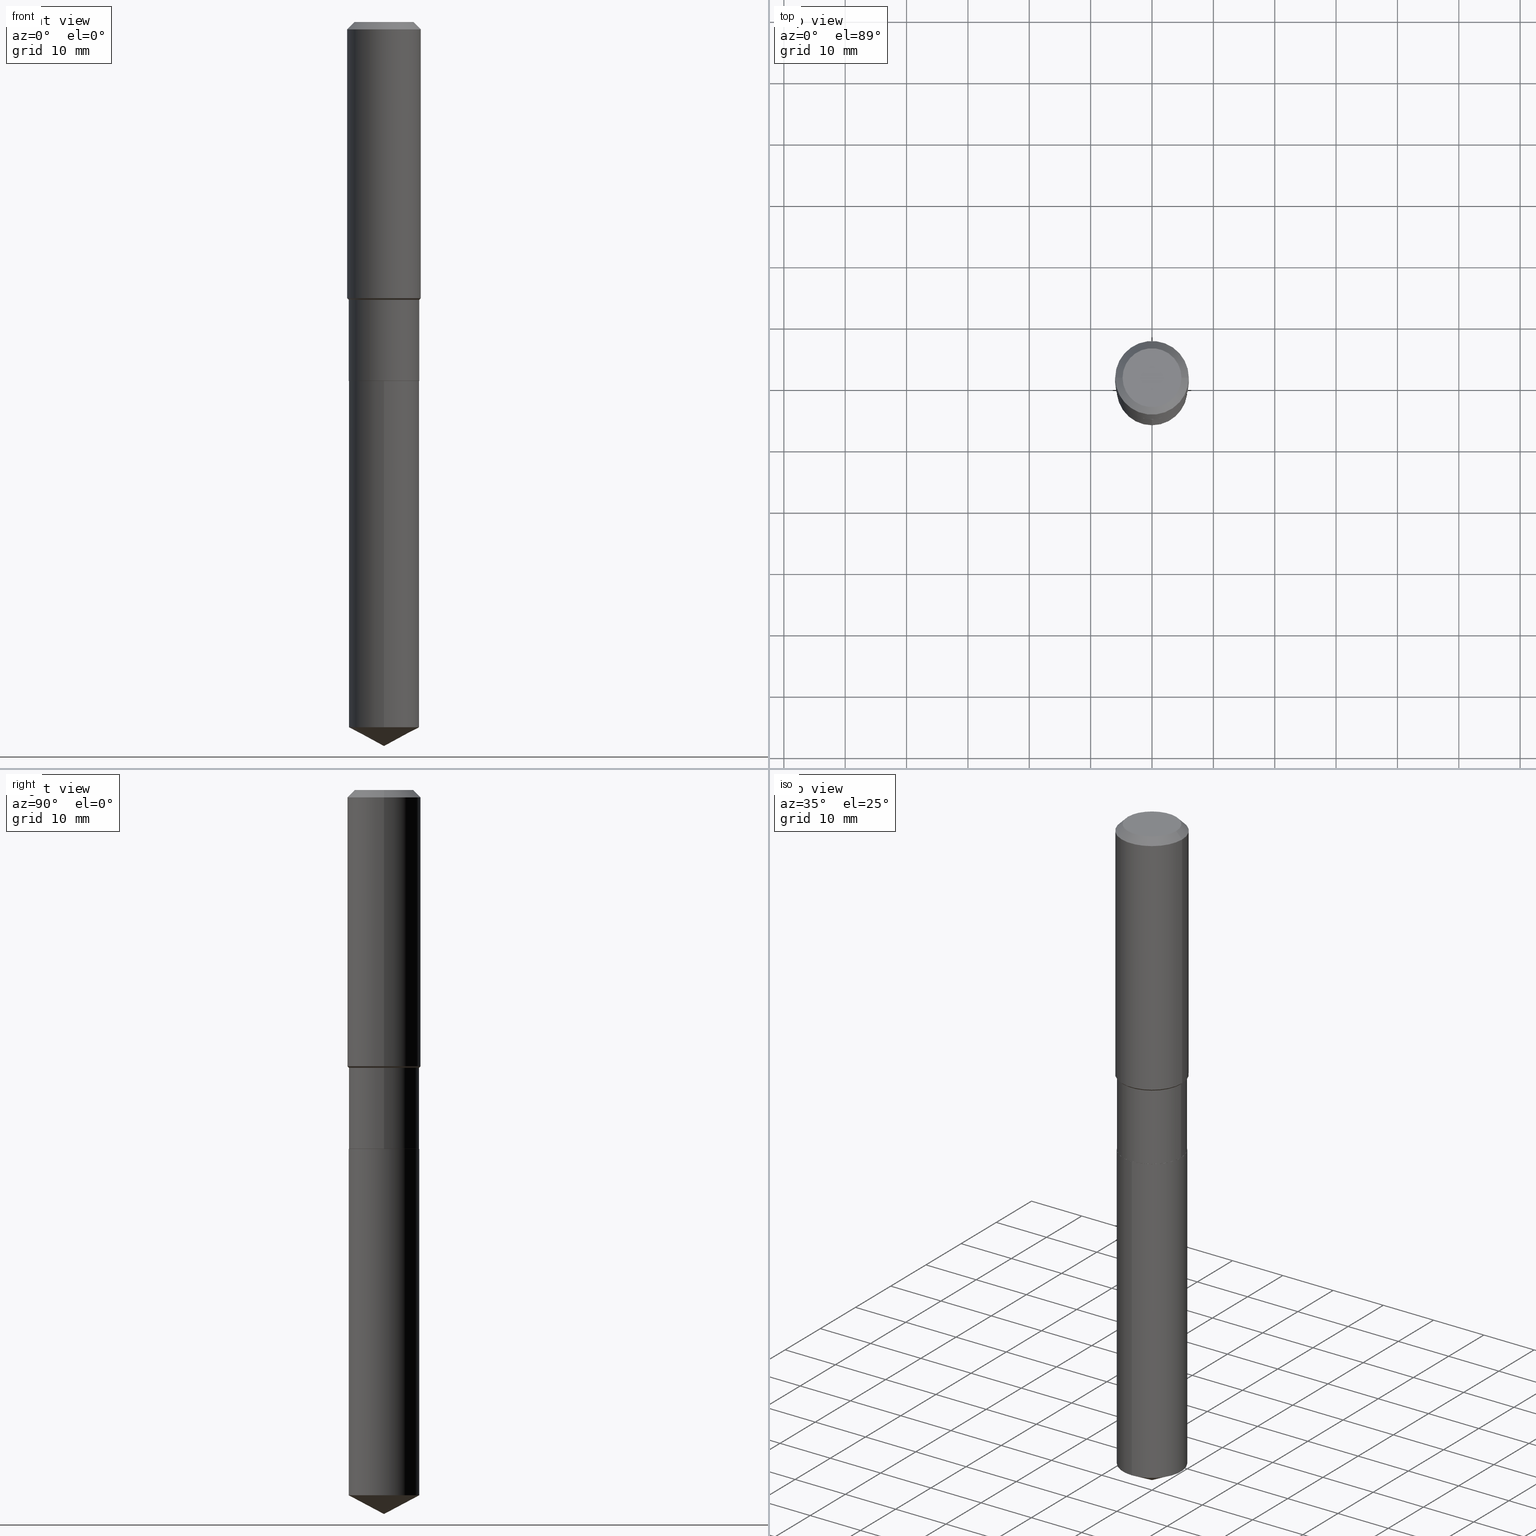
[diagram: canonical four-view strip — front | top / right | iso, engineering-drawing reading convention]
A machine part, canonical four-view strip (front | top / right | iso — engineering-drawing reading convention). The complete STEP part file that produces these views, byte-faithful:
ISO-10303-21;
HEADER;
FILE_DESCRIPTION (( 'STEP AP203' ),
    '1' );
FILE_NAME ('65085.STEP',
    '2024-04-24T20:34:29',
    ( '' ),
    ( '' ),
    'SwSTEP 2.0',
    'SolidWorks 2023',
    '' );
FILE_SCHEMA (( 'CONFIG_CONTROL_DESIGN' ));
ENDSEC;

DATA;
#1 = CIRCLE ( 'NONE', #147, 0.2263999999999999624 ) ;
#2 = DIRECTION ( 'NONE',  ( 1.000000000000000000, -6.982962677686266711E-15, 0.000000000000000000 ) ) ;
#3 = FACE_OUTER_BOUND ( 'NONE', #291, .T. ) ;
#4 = ORIENTED_EDGE ( 'NONE', *, *, #406, .T. ) ;
#5 = VERTEX_POINT ( 'NONE', #215 ) ;
#6 = CYLINDRICAL_SURFACE ( 'NONE', #219, 0.2263999999999999346 ) ;
#7 = EDGE_CURVE ( 'NONE', #264, #183, #328, .T. ) ;
#8 = CARTESIAN_POINT ( 'NONE',  ( 1.155239464041865506E-30, -1.649375784469511859E-16, -0.04724000000000028177 ) ) ;
#9 = VERTEX_POINT ( 'NONE', #435 ) ;
#10 = DIRECTION ( 'NONE',  ( -6.982962677686265922E-15, -1.000000000000000000, 3.619939920933211627E-15 ) ) ;
#11 = VECTOR ( 'NONE', #119, 39.37007874015748143 ) ;
#12 = CIRCLE ( 'NONE', #157, 0.2263999999999999624 ) ;
#13 = DIRECTION ( 'NONE',  ( 2.445496607423183492E-29, -3.491441525887913744E-15, -1.000000000000000000 ) ) ;
#14 = ORIENTED_EDGE ( 'NONE', *, *, #430, .T. ) ;
#15 = FACE_OUTER_BOUND ( 'NONE', #407, .T. ) ;
#16 = ADVANCED_FACE ( 'NONE', ( #122 ), #27, .T. ) ;
#17 = PERSON_AND_ORGANIZATION ( #425, #131 ) ;
#18 = ADVANCED_FACE ( 'NONE', ( #432 ), #96, .T. ) ;
#19 = CARTESIAN_POINT ( 'NONE',  ( 0.2263999999999999346, -1.580942750228170233E-15, 1.103966422040199590E-29 ) ) ;
#20 = ORIENTED_EDGE ( 'NONE', *, *, #376, .T. ) ;
#21 = DIRECTION ( 'NONE',  ( -1.000000000000000000, 6.982962677686266711E-15, 0.000000000000000000 ) ) ;
#22 = AXIS2_PLACEMENT_3D ( 'NONE', #149, #442, #105 ) ;
#23 = CARTESIAN_POINT ( 'NONE',  ( -0.2362000000000002153, -4.511047027501882961E-15, -1.772699999999999054 ) ) ;
#24 = LINE ( 'NONE', #19, #268 ) ;
#25 = ADVANCED_FACE ( 'NONE', ( #3 ), #6, .T. ) ;
#26 = DIRECTION ( 'NONE',  ( -2.445468806185136597E-29, 3.491481338843145583E-15, 1.000000000000000000 ) ) ;
#27 = CYLINDRICAL_SURFACE ( 'NONE', #102, 0.2263999999999999624 ) ;
#28 = ORIENTED_EDGE ( 'NONE', *, *, #331, .F. ) ;
#29 = DIRECTION ( 'NONE',  ( -6.165590087286832874E-15, -0.8829475928589261002, 0.4694715627858920826 ) ) ;
#30 = CIRCLE ( 'NONE', #115, 0.2362000000000002153 ) ;
#31 = VECTOR ( 'NONE', #350, 39.37007874015748143 ) ;
#32 = EDGE_CURVE ( 'NONE', #185, #5, #74, .T. ) ;
#33 = CONICAL_SURFACE ( 'NONE', #330, 74.04434902938349694, 1.082104136236486269 ) ;
#34 = EDGE_CURVE ( 'NONE', #396, #88, #150, .T. ) ;
#35 = DIRECTION ( 'NONE',  ( -2.445468806185136597E-29, 3.491481338843145583E-15, 1.000000000000000000 ) ) ;
#36 = CC_DESIGN_PERSON_AND_ORGANIZATION_ASSIGNMENT ( #86, #352, ( #261 ) ) ;
#37 = CONICAL_SURFACE ( 'NONE', #477, 0.2361999999999999933, 0.7853981633974452814 ) ;
#38 = AXIS2_PLACEMENT_3D ( 'NONE', #173, #13, #197 ) ;
#39 = ORIENTED_EDGE ( 'NONE', *, *, #207, .F. ) ;
#40 = DIRECTION ( 'NONE',  ( -0.7071067811865486830, 7.493145998870357316E-15, 0.7071067811865462405 ) ) ;
#41 = ORIENTED_EDGE ( 'NONE', *, *, #7, .T. ) ;
#42 = DIRECTION ( 'NONE',  ( -2.445468806185136877E-29, 3.491481338843145188E-15, 1.000000000000000000 ) ) ;
#43 = EDGE_LOOP ( 'NONE', ( #14, #204, #333, #316 ) ) ;
#44 = DIRECTION ( 'NONE',  ( -2.445468806185136597E-29, 3.491481338843145583E-15, 1.000000000000000000 ) ) ;
#45 = ORIENTED_EDGE ( 'NONE', *, *, #331, .T. ) ;
#46 = VECTOR ( 'NONE', #480, 39.37007874015748143 ) ;
#47 = CARTESIAN_POINT ( 'NONE',  ( -9.427742298522546243E-47, 1.346031739168365344E-32, 3.855188123715862256E-18 ) ) ;
#48 = EDGE_CURVE ( 'NONE', #381, #187, #368, .T. ) ;
#49 = ADVANCED_FACE ( 'NONE', ( #262 ), #408, .T. ) ;
#50 = DATE_AND_TIME ( #379, #311 ) ;
#51 = EDGE_LOOP ( 'NONE', ( #167, #445, #138, #225 ) ) ;
#52 = CARTESIAN_POINT ( 'NONE',  ( 5.632403754405604963E-29, -8.041579819623531161E-15, -2.303199999999999470 ) ) ;
#53 = PERSON_AND_ORGANIZATION ( #425, #131 ) ;
#54 = EDGE_CURVE ( 'NONE', #396, #9, #300, .T. ) ;
#55 = DIRECTION ( 'NONE',  ( -2.445468806185136877E-29, 3.491481338843145188E-15, 1.000000000000000000 ) ) ;
#56 = ORIENTED_EDGE ( 'NONE', *, *, #178, .F. ) ;
#57 = CARTESIAN_POINT ( 'NONE',  ( 5.632403754405604963E-29, -8.041579819623531161E-15, -2.303199999999999470 ) ) ;
#58 = VERTEX_POINT ( 'NONE', #132 ) ;
#59 = AXIS2_PLACEMENT_3D ( 'NONE', #317, #90, #193 ) ;
#60 = DATE_AND_TIME ( #478, #340 ) ;
#61 = ADVANCED_FACE ( 'NONE', ( #198 ), #169, .T. ) ;
#62 = ORIENTED_EDGE ( 'NONE', *, *, #32, .T. ) ;
#63 = FACE_OUTER_BOUND ( 'NONE', #287, .T. ) ;
#64 = APPROVAL_ROLE ( '' ) ;
#65 = CARTESIAN_POINT ( 'NONE',  ( 1.608668753760977191E-15, 0.2263999999999919133, -2.303200000000000358 ) ) ;
#66 = DATE_AND_TIME ( #245, #293 ) ;
#67 = AXIS2_PLACEMENT_3D ( 'NONE', #252, #423, #263 ) ;
#68 = CC_DESIGN_APPROVAL ( #260, ( #397 ) ) ;
#69 = MANIFOLD_SOLID_BREP ( 'Body-Move/Copy2[1]', #490 ) ;
#70 = CYLINDRICAL_SURFACE ( 'NONE', #179, 0.2263999999999999346 ) ;
#71 = ORIENTED_EDGE ( 'NONE', *, *, #457, .F. ) ;
#72 = DIRECTION ( 'NONE',  ( 1.000000000000000000, -6.982962677686266711E-15, 4.876185090822587894E-29 ) ) ;
#73 = ORIENTED_EDGE ( 'NONE', *, *, #376, .F. ) ;
#74 = CIRCLE ( 'NONE', #145, 0.2263999999999999069 ) ;
#75 = CARTESIAN_POINT ( 'NONE',  ( -0.2263999999999999346, 1.608668753760866356E-15, -1.113646904433710280E-29 ) ) ;
#76 = ORIENTED_EDGE ( 'NONE', *, *, #281, .T. ) ;
#77 = EDGE_CURVE ( 'NONE', #264, #83, #318, .T. ) ;
#78 = CARTESIAN_POINT ( 'NONE',  ( 0.000000000000000000, 0.000000000000000000, 0.000000000000000000 ) ) ;
#79 = EDGE_CURVE ( 'NONE', #88, #251, #139, .T. ) ;
#80 = DIRECTION ( 'NONE',  ( 1.000000000000000000, -6.982962677686265922E-15, 0.000000000000000000 ) ) ;
#81 = DIRECTION ( 'NONE',  ( 1.000000000000000000, -6.982962677686265922E-15, 4.876176775795935793E-29 ) ) ;
#82 = MECHANICAL_CONTEXT ( 'NONE', #355, 'mechanical' ) ;
#83 = VERTEX_POINT ( 'NONE', #434 ) ;
#84 = CIRCLE ( 'NONE', #324, 0.2361999999999999933 ) ;
#85 = CONICAL_SURFACE ( 'NONE', #203, 74.04434902938349694, 1.082104136236486269 ) ;
#86 = PERSON_AND_ORGANIZATION ( #425, #131 ) ;
#87 = DIRECTION ( 'NONE',  ( 2.445468806185136597E-29, -3.491481338843145583E-15, -1.000000000000000000 ) ) ;
#88 = VERTEX_POINT ( 'NONE', #208 ) ;
#89 = DESIGN_CONTEXT ( 'detailed design', #364, 'design' ) ;
#90 = DIRECTION ( 'NONE',  ( -2.445468806185136597E-29, 3.491481338843145583E-15, 1.000000000000000000 ) ) ;
#91 = ORIENTED_EDGE ( 'NONE', *, *, #421, .T. ) ;
#92 = CIRCLE ( 'NONE', #356, 0.2263999999999999624 ) ;
#93 = VECTOR ( 'NONE', #366, 39.37007874015748143 ) ;
#94 = DIRECTION ( 'NONE',  ( 2.445468806185136597E-29, -3.491481338843145583E-15, -1.000000000000000000 ) ) ;
#95 = APPROVAL_ROLE ( '' ) ;
#96 = CYLINDRICAL_SURFACE ( 'NONE', #202, 0.2362000000000001043 ) ;
#97 = ORIENTED_EDGE ( 'NONE', *, *, #120, .F. ) ;
#98 = EDGE_CURVE ( 'NONE', #375, #394, #296, .T. ) ;
#99 = COORDINATED_UNIVERSAL_TIME_OFFSET ( 5, 0, .BEHIND. ) ;
#100 = CARTESIAN_POINT ( 'NONE',  ( -4.713871149261273121E-47, 6.730158695841826722E-33, 1.927594061857931128E-18 ) ) ;
#101 = FACE_OUTER_BOUND ( 'NONE', #256, .T. ) ;
#102 = AXIS2_PLACEMENT_3D ( 'NONE', #211, #357, #476 ) ;
#103 = DIRECTION ( 'NONE',  ( 1.000000000000000000, -6.982962677686269077E-15, 0.000000000000000000 ) ) ;
#104 = ORIENTED_EDGE ( 'NONE', *, *, #440, .F. ) ;
#105 = DIRECTION ( 'NONE',  ( 1.000000000000000000, -6.982962677686269077E-15, 0.000000000000000000 ) ) ;
#106 = CC_DESIGN_DATE_AND_TIME_ASSIGNMENT ( #326, #400, ( #141 ) ) ;
#107 = DIRECTION ( 'NONE',  ( -6.982962677686265133E-15, -1.000000000000000000, 3.541896320645562841E-15 ) ) ;
#108 = EDGE_LOOP ( 'NONE', ( #62, #453, #420, #367 ) ) ;
#109 = ORIENTED_EDGE ( 'NONE', *, *, #34, .T. ) ;
#110 = ADVANCED_FACE ( 'NONE', ( #444 ), #112, .F. ) ;
#111 = DIRECTION ( 'NONE',  ( -2.445468806185136597E-29, 3.491481338843145583E-15, 1.000000000000000000 ) ) ;
#112 = PLANE ( 'NONE',  #177 ) ;
#113 = CARTESIAN_POINT ( 'NONE',  ( -0.1889600000000000168, 1.401969416799070942E-15, 3.855188123706346622E-18 ) ) ;
#114 = DIRECTION ( 'NONE',  ( 1.000000000000000000, -6.982962677686265922E-15, 0.000000000000000000 ) ) ;
#115 = AXIS2_PLACEMENT_3D ( 'NONE', #172, #347, #451 ) ;
#116 = VECTOR ( 'NONE', #274, 39.37007874015748143 ) ;
#117 = CARTESIAN_POINT ( 'NONE',  ( -1.580942750228060187E-15, -0.2264000000000157831, -4.525320984671840741 ) ) ;
#118 = APPROVAL_PERSON_ORGANIZATION ( #53, #260, #95 ) ;
#119 = DIRECTION ( 'NONE',  ( -0.7071067811865453523, 2.468850131082234184E-15, -0.7071067811865496822 ) ) ;
#120 = EDGE_CURVE ( 'NONE', #236, #375, #436, .T. ) ;
#121 = ORIENTED_EDGE ( 'NONE', *, *, #143, .T. ) ;
#122 = FACE_OUTER_BOUND ( 'NONE', #43, .T. ) ;
#123 = FACE_OUTER_BOUND ( 'NONE', #320, .T. ) ;
#124 = CARTESIAN_POINT ( 'NONE',  ( 5.632403754405604963E-29, -8.041579819623531161E-15, -2.303199999999999470 ) ) ;
#125 = CC_DESIGN_PERSON_AND_ORGANIZATION_ASSIGNMENT ( #321, #428, ( #288 ) ) ;
#126 = EDGE_LOOP ( 'NONE', ( #411, #332, #233, #194 ) ) ;
#127 = PLANE ( 'NONE',  #230 ) ;
#128 = DIRECTION ( 'NONE',  ( -6.982962677686265133E-15, -1.000000000000000000, 3.541896320645562841E-15 ) ) ;
#129 = EDGE_LOOP ( 'NONE', ( #155, #488, #240, #56 ) ) ;
#130 = CC_DESIGN_PERSON_AND_ORGANIZATION_ASSIGNMENT ( #282, #176, ( #397 ) ) ;
#131 = ORGANIZATION ( 'UNSPECIFIED', 'UNSPECIFIED', '' ) ;
#132 = CARTESIAN_POINT ( 'NONE',  ( -0.2263999999999999624, -5.523031028960140857E-15, -2.302699999999999303 ) ) ;
#133 = CARTESIAN_POINT ( 'NONE',  ( 4.335082552724389227E-29, -6.189348969367240933E-15, -1.772699999999999054 ) ) ;
#134 = FACE_OUTER_BOUND ( 'NONE', #335, .T. ) ;
#135 = ORIENTED_EDGE ( 'NONE', *, *, #79, .T. ) ;
#136 = DIRECTION ( 'NONE',  ( -2.445496607423183772E-29, 3.491441525887913744E-15, 1.000000000000000000 ) ) ;
#137 = EDGE_CURVE ( 'NONE', #58, #394, #209, .T. ) ;
#138 = ORIENTED_EDGE ( 'NONE', *, *, #98, .T. ) ;
#139 = LINE ( 'NONE', #401, #46 ) ;
#140 = APPROVAL_ROLE ( '' ) ;
#141 = SECURITY_CLASSIFICATION ( '', '', #383 ) ;
#142 = DATE_TIME_ROLE ( 'creation_date' ) ;
#143 = EDGE_CURVE ( 'NONE', #88, #396, #259, .T. ) ;
#144 = ADVANCED_FACE ( 'NONE', ( #134 ), #37, .T. ) ;
#145 = AXIS2_PLACEMENT_3D ( 'NONE', #334, #460, #80 ) ;
#146 = CALENDAR_DATE ( 2024, 24, 4 ) ;
#147 = AXIS2_PLACEMENT_3D ( 'NONE', #371, #249, #184 ) ;
#148 = EDGE_CURVE ( 'NONE', #313, #251, #165, .T. ) ;
#149 = CARTESIAN_POINT ( 'NONE',  ( 5.631181020002513283E-29, -8.039834078954108869E-15, -2.302699999999999303 ) ) ;
#150 = CIRCLE ( 'NONE', #378, 0.1889600000000000168 ) ;
#151 = CC_DESIGN_SECURITY_CLASSIFICATION ( #141, ( #261 ) ) ;
#152 = EDGE_CURVE ( 'NONE', #163, #9, #158, .T. ) ;
#153 = ORIENTED_EDGE ( 'NONE', *, *, #207, .T. ) ;
#154 = ORIENTED_EDGE ( 'NONE', *, *, #430, .F. ) ;
#155 = ORIENTED_EDGE ( 'NONE', *, *, #152, .F. ) ;
#156 = DIRECTION ( 'NONE',  ( -2.445468806185136597E-29, 3.491481338843145583E-15, 1.000000000000000000 ) ) ;
#157 = AXIS2_PLACEMENT_3D ( 'NONE', #124, #232, #10 ) ;
#158 = LINE ( 'NONE', #373, #339 ) ;
#159 = ORIENTED_EDGE ( 'NONE', *, *, #457, .T. ) ;
#160 = PERSON_AND_ORGANIZATION_ROLE ( 'creator' ) ;
#161 = FACE_OUTER_BOUND ( 'NONE', #108, .T. ) ;
#162 = PLANE ( 'NONE',  #38 ) ;
#163 = VERTEX_POINT ( 'NONE', #23 ) ;
#164 = DIRECTION ( 'NONE',  ( -0.7071067811866199593, 7.493145998870616062E-15, 0.7071067811864750752 ) ) ;
#165 = LINE ( 'NONE', #410, #116 ) ;
#166 = CARTESIAN_POINT ( 'NONE',  ( 1.106659308370445826E-28, -1.579998530105374053E-14, -4.525320984671841629 ) ) ;
#167 = ORIENTED_EDGE ( 'NONE', *, *, #266, .F. ) ;
#168 = VECTOR ( 'NONE', #362, 39.37007874015748143 ) ;
#169 = CYLINDRICAL_SURFACE ( 'NONE', #292, 0.2263999999999999624 ) ;
#170 = CARTESIAN_POINT ( 'NONE',  ( 0.2362000000000002153, -7.838724753836739036E-15, -1.772699999999999054 ) ) ;
#171 = PERSON_AND_ORGANIZATION ( #425, #131 ) ;
#172 = CARTESIAN_POINT ( 'NONE',  ( 4.335082552724389227E-29, -6.189348969367240933E-15, -1.772699999999999054 ) ) ;
#173 = CARTESIAN_POINT ( 'NONE',  ( 5.632403754405604963E-29, -8.041579819623531161E-15, -2.303199999999999470 ) ) ;
#174 = ORIENTED_EDGE ( 'NONE', *, *, #98, .F. ) ;
#175 = ADVANCED_FACE ( 'NONE', ( #161 ), #250, .T. ) ;
#176 = PERSON_AND_ORGANIZATION_ROLE ( 'creator' ) ;
#177 = AXIS2_PLACEMENT_3D ( 'NONE', #100, #248, #222 ) ;
#178 = EDGE_CURVE ( 'NONE', #9, #251, #84, .T. ) ;
#179 = AXIS2_PLACEMENT_3D ( 'NONE', #438, #482, #242 ) ;
#180 = CIRCLE ( 'NONE', #437, 0.2263999999999999624 ) ;
#181 = AXIS2_PLACEMENT_3D ( 'NONE', #57, #465, #395 ) ;
#182 = APPROVAL_PERSON_ORGANIZATION ( #246, #359, #64 ) ;
#183 = VERTEX_POINT ( 'NONE', #117 ) ;
#184 = DIRECTION ( 'NONE',  ( -6.982962677686265922E-15, -1.000000000000000000, 2.413293280622141084E-15 ) ) ;
#185 = VERTEX_POINT ( 'NONE', #341 ) ;
#186 = DIRECTION ( 'NONE',  ( -6.982962677686265922E-15, -1.000000000000000000, 3.619939920933211627E-15 ) ) ;
#187 = VERTEX_POINT ( 'NONE', #305 ) ;
#188 = DIRECTION ( 'NONE',  ( -2.445496607423183772E-29, 3.491441525887913744E-15, 1.000000000000000000 ) ) ;
#189 = ADVANCED_FACE ( 'NONE', ( #123 ), #127, .F. ) ;
#190 = CARTESIAN_POINT ( 'NONE',  ( 0.000000000000000000, 0.000000000000000000, 0.000000000000000000 ) ) ;
#191 = LOCAL_TIME ( 16, 34, 29.00000000000000000, #99 ) ;
#192 = DIRECTION ( 'NONE',  ( -2.445468806185136597E-29, 3.491481338843145583E-15, 1.000000000000000000 ) ) ;
#193 = DIRECTION ( 'NONE',  ( 1.000000000000000000, -6.982962677686266711E-15, 4.876176775795935793E-29 ) ) ;
#194 = ORIENTED_EDGE ( 'NONE', *, *, #205, .F. ) ;
#195 = DIRECTION ( 'NONE',  ( -2.445468806185136597E-29, 3.491481338843145583E-15, 1.000000000000000000 ) ) ;
#196 = COORDINATED_UNIVERSAL_TIME_OFFSET ( 5, 0, .BEHIND. ) ;
#197 = DIRECTION ( 'NONE',  ( 6.982962677686265922E-15, 1.000000000000000000, -3.491441525887913744E-15 ) ) ;
#198 = FACE_OUTER_BOUND ( 'NONE', #337, .T. ) ;
#199 = DIRECTION ( 'NONE',  ( 1.000000000000000000, -6.982962677686266711E-15, 0.000000000000000000 ) ) ;
#200 = CARTESIAN_POINT ( 'NONE',  ( 1.155239464041865506E-30, -1.649375784469511859E-16, -0.04724000000000028177 ) ) ;
#201 = DIRECTION ( 'NONE',  ( 1.000000000000000000, 0.000000000000000000, 0.000000000000000000 ) ) ;
#202 = AXIS2_PLACEMENT_3D ( 'NONE', #226, #369, #257 ) ;
#203 = AXIS2_PLACEMENT_3D ( 'NONE', #298, #255, #107 ) ;
#204 = ORIENTED_EDGE ( 'NONE', *, *, #450, .T. ) ;
#205 = EDGE_CURVE ( 'NONE', #163, #313, #30, .T. ) ;
#206 = CARTESIAN_POINT ( 'NONE',  ( 1.136091552548294289E-28, -1.622037329121446076E-14, -4.645699999999999719 ) ) ;
#207 = EDGE_CURVE ( 'NONE', #394, #58, #92, .T. ) ;
#208 = CARTESIAN_POINT ( 'NONE',  ( 0.1889600000000000168, -1.540873453589747738E-15, 3.855188123725863225E-18 ) ) ;
#209 = CIRCLE ( 'NONE', #22, 0.2263999999999999624 ) ;
#210 = AXIS2_PLACEMENT_3D ( 'NONE', #8, #156, #2 ) ;
#211 = CARTESIAN_POINT ( 'NONE',  ( 5.632403754405604963E-29, -8.041579819623531161E-15, -2.303199999999999470 ) ) ;
#212 = PERSON_AND_ORGANIZATION_ROLE ( 'classification_officer' ) ;
#213 = VECTOR ( 'NONE', #471, 39.37007874015748854 ) ;
#214 = AXIS2_PLACEMENT_3D ( 'NONE', #382, #195, #349 ) ;
#215 = CARTESIAN_POINT ( 'NONE',  ( -0.2263999999999999069, -5.523031028960140857E-15, -1.782499999999999307 ) ) ;
#216 = CARTESIAN_POINT ( 'NONE',  ( 0.2263999999999999624, -9.620776829182280876E-15, -2.302699999999999303 ) ) ;
#217 = CARTESIAN_POINT ( 'NONE',  ( 4.359048147025004325E-29, -6.223565486487904770E-15, -1.782499999999999307 ) ) ;
#218 = DIMENSIONAL_EXPONENTS ( 1.000000000000000000, 0.000000000000000000, 0.000000000000000000, 0.000000000000000000, 0.000000000000000000, 0.000000000000000000, 0.000000000000000000 ) ;
#219 = AXIS2_PLACEMENT_3D ( 'NONE', #190, #111, #253 ) ;
#220 = APPROVAL ( #388, 'UNSPECIFIED' ) ;
#221 = ADVANCED_FACE ( 'NONE', ( #254 ), #70, .T. ) ;
#222 = DIRECTION ( 'NONE',  ( -1.000000000000000000, 6.982962677686265922E-15, -4.876176775795935793E-29 ) ) ;
#223 = ADVANCED_FACE ( 'NONE', ( #63 ), #322, .T. ) ;
#224 = CARTESIAN_POINT ( 'NONE',  ( 4.359048147025004325E-29, -6.223565486487904770E-15, -1.782499999999999307 ) ) ;
#225 = ORIENTED_EDGE ( 'NONE', *, *, #137, .F. ) ;
#226 = CARTESIAN_POINT ( 'NONE',  ( 0.000000000000000000, 0.000000000000000000, 0.000000000000000000 ) ) ;
#227 = DIRECTION ( 'NONE',  ( -2.445468806185136597E-29, 3.491481338843145583E-15, 1.000000000000000000 ) ) ;
#228 = DIRECTION ( 'NONE',  ( -2.445496607423183772E-29, 3.491441525887913744E-15, 1.000000000000000000 ) ) ;
#229 = COORDINATED_UNIVERSAL_TIME_OFFSET ( 5, 0, .BEHIND. ) ;
#230 = AXIS2_PLACEMENT_3D ( 'NONE', #413, #418, #81 ) ;
#231 = CONICAL_SURFACE ( 'NONE', #286, 0.2361999999999999933, 0.7853981633974452814 ) ;
#232 = DIRECTION ( 'NONE',  ( -2.445496607423183772E-29, 3.491441525887913744E-15, 1.000000000000000000 ) ) ;
#233 = ORIENTED_EDGE ( 'NONE', *, *, #374, .T. ) ;
#234 = CARTESIAN_POINT ( 'NONE',  ( 5.631181020002513283E-29, -8.039834078954108869E-15, -2.302699999999999303 ) ) ;
#235 = CARTESIAN_POINT ( 'NONE',  ( 4.359048147025004325E-29, -6.223565486487904770E-15, -1.782499999999999307 ) ) ;
#236 = VERTEX_POINT ( 'NONE', #280 ) ;
#237 = CALENDAR_DATE ( 2024, 24, 4 ) ;
#238 = DIRECTION ( 'NONE',  ( 1.000000000000000000, -6.982962677686265922E-15, 0.000000000000000000 ) ) ;
#239 = ORIENTED_EDGE ( 'NONE', *, *, #7, .F. ) ;
#240 = ORIENTED_EDGE ( 'NONE', *, *, #148, .T. ) ;
#241 = APPROVAL_PERSON_ORGANIZATION ( #433, #220, #140 ) ;
#242 = DIRECTION ( 'NONE',  ( 1.000000000000000000, -6.982962677686265922E-15, 4.876176775795935793E-29 ) ) ;
#243 = EDGE_LOOP ( 'NONE', ( #76, #414, #28, #489 ) ) ;
#244 = CIRCLE ( 'NONE', #210, 0.2361999999999999933 ) ;
#245 = CALENDAR_DATE ( 2024, 24, 4 ) ;
#246 = PERSON_AND_ORGANIZATION ( #425, #131 ) ;
#247 = ADVANCED_FACE ( 'NONE', ( #267 ), #404, .T. ) ;
#248 = DIRECTION ( 'NONE',  ( 2.438088387897960049E-29, -3.491481338843145188E-15, -1.000000000000000000 ) ) ;
#249 = DIRECTION ( 'NONE',  ( -2.445496607423183772E-29, 3.491441525887913744E-15, 1.000000000000000000 ) ) ;
#250 = CONICAL_SURFACE ( 'NONE', #310, 0.2263999999999999069, 0.7853981633974500554 ) ;
#251 = VERTEX_POINT ( 'NONE', #307 ) ;
#252 = CARTESIAN_POINT ( 'NONE',  ( -9.427742298522546243E-47, 1.346031739168365344E-32, 3.855188123715862256E-18 ) ) ;
#253 = DIRECTION ( 'NONE',  ( 1.000000000000000000, -6.982962677686265922E-15, 4.876176775795935793E-29 ) ) ;
#254 = FACE_OUTER_BOUND ( 'NONE', #365, .T. ) ;
#255 = DIRECTION ( 'NONE',  ( -2.445496607423183772E-29, 3.491441525887913744E-15, 1.000000000000000000 ) ) ;
#256 = EDGE_LOOP ( 'NONE', ( #304, #41, #427 ) ) ;
#257 = DIRECTION ( 'NONE',  ( 1.000000000000000000, -6.982962677686266711E-15, 4.876176775795935793E-29 ) ) ;
#258 = ADVANCED_FACE ( 'NONE', ( #15 ), #231, .T. ) ;
#259 = CIRCLE ( 'NONE', #67, 0.1889600000000000168 ) ;
#260 = APPROVAL ( #391, 'UNSPECIFIED' ) ;
#261 = PRODUCT_DEFINITION_FORMATION_WITH_SPECIFIED_SOURCE ( 'ANY', '', #288, .NOT_KNOWN. ) ;
#262 = FACE_OUTER_BOUND ( 'NONE', #126, .T. ) ;
#263 = DIRECTION ( 'NONE',  ( 1.000000000000000000, -6.982962677686266711E-15, 4.876185090822587894E-29 ) ) ;
#264 = VERTEX_POINT ( 'NONE', #461 ) ;
#265 = DIRECTION ( 'NONE',  ( -2.445468806185136597E-29, 3.491481338843145583E-15, 1.000000000000000000 ) ) ;
#266 = EDGE_CURVE ( 'NONE', #236, #58, #416, .T. ) ;
#267 = FACE_OUTER_BOUND ( 'NONE', #51, .T. ) ;
#268 = VECTOR ( 'NONE', #55, 39.37007874015748143 ) ;
#269 = CARTESIAN_POINT ( 'NONE',  ( 1.155239464041865506E-30, -1.649375784469511859E-16, -0.04724000000000028177 ) ) ;
#270 = LENGTH_MEASURE_WITH_UNIT ( LENGTH_MEASURE( 0.02539999999999999897 ), #312 );
#271 = ORIENTED_EDGE ( 'NONE', *, *, #54, .F. ) ;
#272 = DIRECTION ( 'NONE',  ( -2.445468806185136597E-29, 3.491481338843145583E-15, 1.000000000000000000 ) ) ;
#273 = COORDINATED_UNIVERSAL_TIME_OFFSET ( 5, 0, .BEHIND. ) ;
#274 = DIRECTION ( 'NONE',  ( -2.445468806185136877E-29, 3.491481338843145188E-15, 1.000000000000000000 ) ) ;
#275 =( NAMED_UNIT ( * ) PLANE_ANGLE_UNIT ( ) SI_UNIT ( $, .RADIAN. ) );
#276 = UNCERTAINTY_MEASURE_WITH_UNIT (LENGTH_MEASURE( 1.000000000000000082E-05 ), #303, 'distance_accuracy_value', 'NONE');
#277 = DIRECTION ( 'NONE',  ( -6.982962677686265922E-15, -1.000000000000000000, 3.619939920933211627E-15 ) ) ;
#278 = CARTESIAN_POINT ( 'NONE',  ( 1.155239464041865506E-30, -1.649375784469511859E-16, -0.04724000000000028177 ) ) ;
#279 = FACE_OUTER_BOUND ( 'NONE', #290, .T. ) ;
#280 = CARTESIAN_POINT ( 'NONE',  ( -0.2258999999999999619, -6.433814552367353714E-15, -2.303199999999999470 ) ) ;
#281 = EDGE_CURVE ( 'NONE', #313, #163, #479, .T. ) ;
#282 = PERSON_AND_ORGANIZATION ( #425, #131 ) ;
#283 = CLOSED_SHELL ( 'NONE', ( #223, #144, #360, #175, #25, #221, #49, #18, #258, #110, #189, #247 ) ) ;
#284 = ORIENTED_EDGE ( 'NONE', *, *, #48, .F. ) ;
#285 = LOCAL_TIME ( 16, 34, 29.00000000000000000, #273 ) ;
#286 = AXIS2_PLACEMENT_3D ( 'NONE', #278, #94, #475 ) ;
#287 = EDGE_LOOP ( 'NONE', ( #20, #390, #39, #174 ) ) ;
#288 = PRODUCT ( '65085', '65085', '', ( #82 ) ) ;
#289 = CARTESIAN_POINT ( 'NONE',  ( -1.580942750228114224E-15, -0.2264000000000080115, -2.303199999999998582 ) ) ;
#290 = EDGE_LOOP ( 'NONE', ( #386, #474 ) ) ;
#291 = EDGE_LOOP ( 'NONE', ( #153, #91, #441, #71 ) ) ;
#292 = AXIS2_PLACEMENT_3D ( 'NONE', #468, #136, #277 ) ;
#293 = LOCAL_TIME ( 16, 34, 29.00000000000000000, #439 ) ;
#294 = CC_DESIGN_DATE_AND_TIME_ASSIGNMENT ( #60, #142, ( #397 ) ) ;
#295 = ORIENTED_EDGE ( 'NONE', *, *, #143, .F. ) ;
#296 = LINE ( 'NONE', #446, #168 ) ;
#297 = ORIENTED_EDGE ( 'NONE', *, *, #421, .F. ) ;
#298 = CARTESIAN_POINT ( 'NONE',  ( -8.491841443574432450E-28, 1.212380461968467788E-13, 34.72437874015748349 ) ) ;
#299 = ORIENTED_EDGE ( 'NONE', *, *, #178, .T. ) ;
#300 = LINE ( 'NONE', #456, #11 ) ;
#301 = PRODUCT_RELATED_PRODUCT_CATEGORY ( 'detail', '', ( #288 ) ) ;
#302 = ORIENTED_EDGE ( 'NONE', *, *, #137, .T. ) ;
#303 =( CONVERSION_BASED_UNIT ( 'INCH', #270 ) LENGTH_UNIT ( ) NAMED_UNIT ( #218 ) );
#304 = ORIENTED_EDGE ( 'NONE', *, *, #77, .F. ) ;
#305 = CARTESIAN_POINT ( 'NONE',  ( -1.580942750228114224E-15, -0.2264000000000080115, -2.303199999999998582 ) ) ;
#306 =( NAMED_UNIT ( * ) SI_UNIT ( $, .STERADIAN. ) SOLID_ANGLE_UNIT ( ) );
#307 = CARTESIAN_POINT ( 'NONE',  ( 0.2361999999999999933, -1.814313362916447440E-15, -0.04724000000000028177 ) ) ;
#308 = FACE_OUTER_BOUND ( 'NONE', #443, .T. ) ;
#309 = EDGE_LOOP ( 'NONE', ( #109, #121 ) ) ;
#310 = AXIS2_PLACEMENT_3D ( 'NONE', #224, #192, #238 ) ;
#311 = LOCAL_TIME ( 16, 34, 29.00000000000000000, #229 ) ;
#312 =( LENGTH_UNIT ( ) NAMED_UNIT ( * ) SI_UNIT ( $, .METRE. ) );
#313 = VERTEX_POINT ( 'NONE', #170 ) ;
#314 = CC_DESIGN_PERSON_AND_ORGANIZATION_ASSIGNMENT ( #171, #212, ( #141 ) ) ;
#315 = LINE ( 'NONE', #372, #409 ) ;
#316 = ORIENTED_EDGE ( 'NONE', *, *, #387, .F. ) ;
#317 = CARTESIAN_POINT ( 'NONE',  ( 0.000000000000000000, 0.000000000000000000, 0.000000000000000000 ) ) ;
#318 = LINE ( 'NONE', #431, #213 ) ;
#319 = EDGE_CURVE ( 'NONE', #5, #163, #315, .T. ) ;
#320 = EDGE_LOOP ( 'NONE', ( #73, #97 ) ) ;
#321 = PERSON_AND_ORGANIZATION ( #425, #131 ) ;
#322 = CONICAL_SURFACE ( 'NONE', #329, 0.2258999999999999619, 0.7853981633975507526 ) ;
#323 = ADVANCED_BREP_SHAPE_REPRESENTATION ( '65085', ( #69, #389, #405 ), #392 ) ;
#324 = AXIS2_PLACEMENT_3D ( 'NONE', #200, #227, #353 ) ;
#325 = CIRCLE ( 'NONE', #429, 0.2263999999999999069 ) ;
#326 = DATE_AND_TIME ( #146, #191 ) ;
#327 = ORIENTED_EDGE ( 'NONE', *, *, #450, .F. ) ;
#328 = LINE ( 'NONE', #206, #454 ) ;
#329 = AXIS2_PLACEMENT_3D ( 'NONE', #52, #26, #345 ) ;
#330 = AXIS2_PLACEMENT_3D ( 'NONE', #336, #426, #128 ) ;
#331 = EDGE_CURVE ( 'NONE', #251, #9, #244, .T. ) ;
#332 = ORIENTED_EDGE ( 'NONE', *, *, #440, .T. ) ;
#333 = ORIENTED_EDGE ( 'NONE', *, *, #485, .F. ) ;
#334 = CARTESIAN_POINT ( 'NONE',  ( 4.359048147025004325E-29, -6.223565486487904770E-15, -1.782499999999999307 ) ) ;
#335 = EDGE_LOOP ( 'NONE', ( #295, #135, #45, #271 ) ) ;
#336 = CARTESIAN_POINT ( 'NONE',  ( -8.491841443574432450E-28, 1.212380461968467788E-13, 34.72437874015748349 ) ) ;
#337 = EDGE_LOOP ( 'NONE', ( #327, #4, #447, #284 ) ) ;
#338 = FACE_OUTER_BOUND ( 'NONE', #243, .T. ) ;
#339 = VECTOR ( 'NONE', #42, 39.37007874015748143 ) ;
#340 = LOCAL_TIME ( 16, 34, 29.00000000000000000, #196 ) ;
#341 = CARTESIAN_POINT ( 'NONE',  ( 0.2263999999999999069, -7.804508236716074411E-15, -1.782499999999999307 ) ) ;
#342 = DIRECTION ( 'NONE',  ( -2.445468806185136877E-29, 3.491481338843145188E-15, 1.000000000000000000 ) ) ;
#343 = ORIENTED_EDGE ( 'NONE', *, *, #77, .T. ) ;
#344 = DIRECTION ( 'NONE',  ( 0.7071067811865486830, -2.468850131082269682E-15, 0.7071067811865462405 ) ) ;
#345 = DIRECTION ( 'NONE',  ( 1.000000000000000000, -6.982962677686266711E-15, 0.000000000000000000 ) ) ;
#346 = APPROVAL_DATE_TIME ( #50, #220 ) ;
#347 = DIRECTION ( 'NONE',  ( -2.445468806185136597E-29, 3.491481338843145583E-15, 1.000000000000000000 ) ) ;
#348 = ORIENTED_EDGE ( 'NONE', *, *, #79, .F. ) ;
#349 = DIRECTION ( 'NONE',  ( 1.000000000000000000, -6.982962677686266711E-15, 0.000000000000000000 ) ) ;
#350 = DIRECTION ( 'NONE',  ( -2.445496607423184052E-29, 3.491441525887913744E-15, 1.000000000000000000 ) ) ;
#351 = CARTESIAN_POINT ( 'NONE',  ( -0.2258999999999999619, -6.436463779541464126E-15, -2.303199999999999470 ) ) ;
#352 = PERSON_AND_ORGANIZATION_ROLE ( 'design_supplier' ) ;
#353 = DIRECTION ( 'NONE',  ( 1.000000000000000000, -6.982962677686266711E-15, 0.000000000000000000 ) ) ;
#354 = LINE ( 'NONE', #467, #393 ) ;
#355 = APPLICATION_CONTEXT ( 'configuration controlled 3d designs of mechanical parts and assemblies' ) ;
#356 = AXIS2_PLACEMENT_3D ( 'NONE', #234, #384, #103 ) ;
#357 = DIRECTION ( 'NONE',  ( -2.445496607423183772E-29, 3.491441525887913744E-15, 1.000000000000000000 ) ) ;
#358 = APPROVAL_STATUS ( 'not_yet_approved' ) ;
#359 = APPROVAL ( #358, 'UNSPECIFIED' ) ;
#360 = ADVANCED_FACE ( 'NONE', ( #338 ), #459, .T. ) ;
#361 = AXIS2_PLACEMENT_3D ( 'NONE', #412, #228, #186 ) ;
#362 = DIRECTION ( 'NONE',  ( 0.7071067811866199593, -2.468850131083015945E-15, 0.7071067811864750752 ) ) ;
#363 = PRODUCT_DEFINITION_SHAPE ( 'NONE', 'NONE',  #397 ) ;
#364 = APPLICATION_CONTEXT ( 'configuration controlled 3d designs of mechanical parts and assemblies' ) ;
#365 = EDGE_LOOP ( 'NONE', ( #297, #302, #159, #104 ) ) ;
#366 = DIRECTION ( 'NONE',  ( -2.445496607423184052E-29, 3.491441525887913744E-15, 1.000000000000000000 ) ) ;
#367 = ORIENTED_EDGE ( 'NONE', *, *, #374, .F. ) ;
#368 = CIRCLE ( 'NONE', #361, 0.2263999999999999624 ) ;
#369 = DIRECTION ( 'NONE',  ( -2.445468806185136597E-29, 3.491481338843145583E-15, 1.000000000000000000 ) ) ;
#370 = CARTESIAN_POINT ( 'NONE',  ( 5.632403754405604963E-29, -8.041579819623531161E-15, -2.303199999999999470 ) ) ;
#371 = CARTESIAN_POINT ( 'NONE',  ( 1.106659308370445826E-28, -1.579998530105374053E-14, -4.525320984671841629 ) ) ;
#372 = CARTESIAN_POINT ( 'NONE',  ( -0.2263999999999999069, -4.614896732727038413E-15, -1.782499999999999307 ) ) ;
#373 = CARTESIAN_POINT ( 'NONE',  ( -0.2362000000000001043, 1.678301941865357380E-15, -1.161852468318209317E-29 ) ) ;
#374 = EDGE_CURVE ( 'NONE', #185, #313, #354, .T. ) ;
#375 = VERTEX_POINT ( 'NONE', #463 ) ;
#376 = EDGE_CURVE ( 'NONE', #375, #236, #455, .T. ) ;
#377 = DIRECTION ( 'NONE',  ( 1.000000000000000000, -6.982962677686265922E-15, 0.000000000000000000 ) ) ;
#378 = AXIS2_PLACEMENT_3D ( 'NONE', #47, #265, #72 ) ;
#379 = CALENDAR_DATE ( 2024, 24, 4 ) ;
#380 = DIRECTION ( 'NONE',  ( 0.000000000000000000, 0.000000000000000000, 1.000000000000000000 ) ) ;
#381 = VERTEX_POINT ( 'NONE', #65 ) ;
#382 = CARTESIAN_POINT ( 'NONE',  ( 5.632403754405604963E-29, -8.041579819623531161E-15, -2.303199999999999470 ) ) ;
#383 = SECURITY_CLASSIFICATION_LEVEL ( 'unclassified' ) ;
#384 = DIRECTION ( 'NONE',  ( -2.445468806185136597E-29, 3.491481338843145583E-15, 1.000000000000000000 ) ) ;
#385 = LINE ( 'NONE', #424, #31 ) ;
#386 = ORIENTED_EDGE ( 'NONE', *, *, #485, .T. ) ;
#387 = EDGE_CURVE ( 'NONE', #183, #187, #487, .T. ) ;
#388 = APPROVAL_STATUS ( 'not_yet_approved' ) ;
#389 = MANIFOLD_SOLID_BREP ( 'Body-Move/Copy2[2]', #283 ) ;
#390 = ORIENTED_EDGE ( 'NONE', *, *, #266, .T. ) ;
#391 = APPROVAL_STATUS ( 'not_yet_approved' ) ;
#392 =( GEOMETRIC_REPRESENTATION_CONTEXT ( 3 ) GLOBAL_UNCERTAINTY_ASSIGNED_CONTEXT ( ( #276 ) ) GLOBAL_UNIT_ASSIGNED_CONTEXT ( ( #303, #275, #306 ) ) REPRESENTATION_CONTEXT ( 'NONE', 'WORKASPACE' ) );
#393 = VECTOR ( 'NONE', #344, 39.37007874015748854 ) ;
#394 = VERTEX_POINT ( 'NONE', #216 ) ;
#395 = DIRECTION ( 'NONE',  ( 1.000000000000000000, -6.982962677686266711E-15, 0.000000000000000000 ) ) ;
#396 = VERTEX_POINT ( 'NONE', #113 ) ;
#397 = PRODUCT_DEFINITION ( 'UNKNOWN', '', #261, #89 ) ;
#398 = SHAPE_DEFINITION_REPRESENTATION ( #363, #323 ) ;
#399 = CC_DESIGN_APPROVAL ( #220, ( #261 ) ) ;
#400 = DATE_TIME_ROLE ( 'classification_date' ) ;
#401 = CARTESIAN_POINT ( 'NONE',  ( 0.2361999999999999933, -1.785387205520586782E-15, -0.04724000000000028177 ) ) ;
#402 = ADVANCED_FACE ( 'NONE', ( #101 ), #85, .T. ) ;
#403 = APPROVAL_DATE_TIME ( #66, #359 ) ;
#404 = CONICAL_SURFACE ( 'NONE', #181, 0.2258999999999999619, 0.7853981633975507526 ) ;
#405 = AXIS2_PLACEMENT_3D ( 'NONE', #78, #380, #201 ) ;
#406 = EDGE_CURVE ( 'NONE', #83, #183, #1, .T. ) ;
#407 = EDGE_LOOP ( 'NONE', ( #348, #470, #458, #299 ) ) ;
#408 = CONICAL_SURFACE ( 'NONE', #483, 0.2263999999999999069, 0.7853981633974500554 ) ;
#409 = VECTOR ( 'NONE', #40, 39.37007874015748854 ) ;
#410 = CARTESIAN_POINT ( 'NONE',  ( 0.2362000000000001043, -1.649375784469496920E-15, 1.151752954443000508E-29 ) ) ;
#411 = ORIENTED_EDGE ( 'NONE', *, *, #319, .F. ) ;
#412 = CARTESIAN_POINT ( 'NONE',  ( 5.632403754405604963E-29, -8.041579819623531161E-15, -2.303199999999999470 ) ) ;
#413 = CARTESIAN_POINT ( 'NONE',  ( 5.632403754405604963E-29, -8.041579819623531161E-15, -2.303199999999999470 ) ) ;
#414 = ORIENTED_EDGE ( 'NONE', *, *, #152, .T. ) ;
#415 = AXIS2_PLACEMENT_3D ( 'NONE', #370, #35, #486 ) ;
#416 = LINE ( 'NONE', #351, #464 ) ;
#417 = AXIS2_PLACEMENT_3D ( 'NONE', #133, #272, #199 ) ;
#418 = DIRECTION ( 'NONE',  ( -2.438088387897960049E-29, 3.491481338843145188E-15, 1.000000000000000000 ) ) ;
#419 = DIRECTION ( 'NONE',  ( -6.982962677686265922E-15, -1.000000000000000000, 2.413293280622141084E-15 ) ) ;
#420 = ORIENTED_EDGE ( 'NONE', *, *, #281, .F. ) ;
#421 = EDGE_CURVE ( 'NONE', #58, #5, #452, .T. ) ;
#422 = DATE_AND_TIME ( #237, #285 ) ;
#423 = DIRECTION ( 'NONE',  ( -2.445468806185136597E-29, 3.491481338843145583E-15, 1.000000000000000000 ) ) ;
#424 = CARTESIAN_POINT ( 'NONE',  ( 1.608668753760922760E-15, 0.2263999999999919410, -2.303200000000000358 ) ) ;
#425 = PERSON ( 'UNSPECIFIED', 'UNSPECIFIED', 'UNSPECIFIED', ('UNSPECIFIED'), ('UNSPECIFIED'), ('UNSPECIFIED') ) ;
#426 = DIRECTION ( 'NONE',  ( -2.445496607423183772E-29, 3.491441525887913744E-15, 1.000000000000000000 ) ) ;
#427 = ORIENTED_EDGE ( 'NONE', *, *, #406, .F. ) ;
#428 = PERSON_AND_ORGANIZATION_ROLE ( 'design_owner' ) ;
#429 = AXIS2_PLACEMENT_3D ( 'NONE', #235, #44, #377 ) ;
#430 = EDGE_CURVE ( 'NONE', #183, #83, #180, .T. ) ;
#431 = CARTESIAN_POINT ( 'NONE',  ( 1.136104471207268922E-28, -1.622018989681747933E-14, -4.645699999999999719 ) ) ;
#432 = FACE_OUTER_BOUND ( 'NONE', #129, .T. ) ;
#433 = PERSON_AND_ORGANIZATION ( #425, #131 ) ;
#434 = CARTESIAN_POINT ( 'NONE',  ( 1.608668753760976994E-15, 0.2263999999999841972, -4.525320984671841629 ) ) ;
#435 = CARTESIAN_POINT ( 'NONE',  ( -0.2361999999999999933, -1.498841332041738346E-15, -0.04724000000000028177 ) ) ;
#436 = CIRCLE ( 'NONE', #415, 0.2258999999999999619 ) ;
#437 = AXIS2_PLACEMENT_3D ( 'NONE', #166, #188, #419 ) ;
#438 = CARTESIAN_POINT ( 'NONE',  ( 0.000000000000000000, 0.000000000000000000, 0.000000000000000000 ) ) ;
#439 = COORDINATED_UNIVERSAL_TIME_OFFSET ( 5, 0, .BEHIND. ) ;
#440 = EDGE_CURVE ( 'NONE', #5, #185, #325, .T. ) ;
#441 = ORIENTED_EDGE ( 'NONE', *, *, #32, .F. ) ;
#442 = DIRECTION ( 'NONE',  ( -2.445468806185136597E-29, 3.491481338843145583E-15, 1.000000000000000000 ) ) ;
#443 = EDGE_LOOP ( 'NONE', ( #239, #343, #154 ) ) ;
#444 = FACE_OUTER_BOUND ( 'NONE', #309, .T. ) ;
#445 = ORIENTED_EDGE ( 'NONE', *, *, #120, .T. ) ;
#446 = CARTESIAN_POINT ( 'NONE',  ( 0.2258999999999999619, -9.619031088512858584E-15, -2.303199999999999470 ) ) ;
#447 = ORIENTED_EDGE ( 'NONE', *, *, #387, .T. ) ;
#448 = DIRECTION ( 'NONE',  ( -2.445468806185136597E-29, 3.491481338843145583E-15, 1.000000000000000000 ) ) ;
#449 = CC_DESIGN_PERSON_AND_ORGANIZATION_ASSIGNMENT ( #17, #160, ( #261 ) ) ;
#450 = EDGE_CURVE ( 'NONE', #83, #381, #385, .T. ) ;
#451 = DIRECTION ( 'NONE',  ( 1.000000000000000000, -6.982962677686266711E-15, 0.000000000000000000 ) ) ;
#452 = LINE ( 'NONE', #75, #484 ) ;
#453 = ORIENTED_EDGE ( 'NONE', *, *, #319, .T. ) ;
#454 = VECTOR ( 'NONE', #29, 39.37007874015748854 ) ;
#455 = CIRCLE ( 'NONE', #214, 0.2258999999999999619 ) ;
#456 = CARTESIAN_POINT ( 'NONE',  ( -0.2361999999999999933, 1.484438206022545019E-15, -0.04724000000000028177 ) ) ;
#457 = EDGE_CURVE ( 'NONE', #394, #185, #24, .T. ) ;
#458 = ORIENTED_EDGE ( 'NONE', *, *, #54, .T. ) ;
#459 = CYLINDRICAL_SURFACE ( 'NONE', #59, 0.2362000000000001043 ) ;
#460 = DIRECTION ( 'NONE',  ( -2.445468806185136597E-29, 3.491481338843145583E-15, 1.000000000000000000 ) ) ;
#461 = CARTESIAN_POINT ( 'NONE',  ( 1.136104358910588354E-28, -1.622018989681747933E-14, -4.645699999999999719 ) ) ;
#462 = APPLICATION_PROTOCOL_DEFINITION ( 'international standard', 'config_control_design', 1994, #364 ) ;
#463 = CARTESIAN_POINT ( 'NONE',  ( 0.2258999999999999619, -9.619031088512858584E-15, -2.303199999999999470 ) ) ;
#464 = VECTOR ( 'NONE', #164, 39.37007874015748143 ) ;
#465 = DIRECTION ( 'NONE',  ( -2.445468806185136597E-29, 3.491481338843145583E-15, 1.000000000000000000 ) ) ;
#466 = CC_DESIGN_APPROVAL ( #359, ( #141 ) ) ;
#467 = CARTESIAN_POINT ( 'NONE',  ( 0.2263999999999999069, -7.804508236716074411E-15, -1.782499999999999307 ) ) ;
#468 = CARTESIAN_POINT ( 'NONE',  ( 5.632403754405604963E-29, -8.041579819623531161E-15, -2.303199999999999470 ) ) ;
#469 = APPLICATION_PROTOCOL_DEFINITION ( 'international standard', 'config_control_design', 1994, #355 ) ;
#470 = ORIENTED_EDGE ( 'NONE', *, *, #34, .F. ) ;
#471 = DIRECTION ( 'NONE',  ( 6.273719981627763710E-15, 0.8829475928589293199, 0.4694715627858859208 ) ) ;
#472 = ADVANCED_FACE ( 'NONE', ( #308 ), #33, .T. ) ;
#473 = APPROVAL_DATE_TIME ( #422, #260 ) ;
#474 = ORIENTED_EDGE ( 'NONE', *, *, #48, .T. ) ;
#475 = DIRECTION ( 'NONE',  ( -1.000000000000000000, 6.982962677686266711E-15, 0.000000000000000000 ) ) ;
#476 = DIRECTION ( 'NONE',  ( -6.982962677686265922E-15, -1.000000000000000000, 3.619939920933211627E-15 ) ) ;
#477 = AXIS2_PLACEMENT_3D ( 'NONE', #269, #87, #21 ) ;
#478 = CALENDAR_DATE ( 2024, 24, 4 ) ;
#479 = CIRCLE ( 'NONE', #417, 0.2362000000000002153 ) ;
#480 = DIRECTION ( 'NONE',  ( 0.7071067811865453523, -7.319954787623248157E-15, -0.7071067811865496822 ) ) ;
#481 = ADVANCED_FACE ( 'NONE', ( #279 ), #162, .F. ) ;
#482 = DIRECTION ( 'NONE',  ( -2.445468806185136597E-29, 3.491481338843145583E-15, 1.000000000000000000 ) ) ;
#483 = AXIS2_PLACEMENT_3D ( 'NONE', #217, #448, #114 ) ;
#484 = VECTOR ( 'NONE', #342, 39.37007874015748143 ) ;
#485 = EDGE_CURVE ( 'NONE', #187, #381, #12, .T. ) ;
#486 = DIRECTION ( 'NONE',  ( 1.000000000000000000, -6.982962677686266711E-15, 0.000000000000000000 ) ) ;
#487 = LINE ( 'NONE', #289, #93 ) ;
#488 = ORIENTED_EDGE ( 'NONE', *, *, #205, .T. ) ;
#489 = ORIENTED_EDGE ( 'NONE', *, *, #148, .F. ) ;
#490 = CLOSED_SHELL ( 'NONE', ( #16, #472, #402, #61, #481 ) ) ;
ENDSEC;
END-ISO-10303-21;
